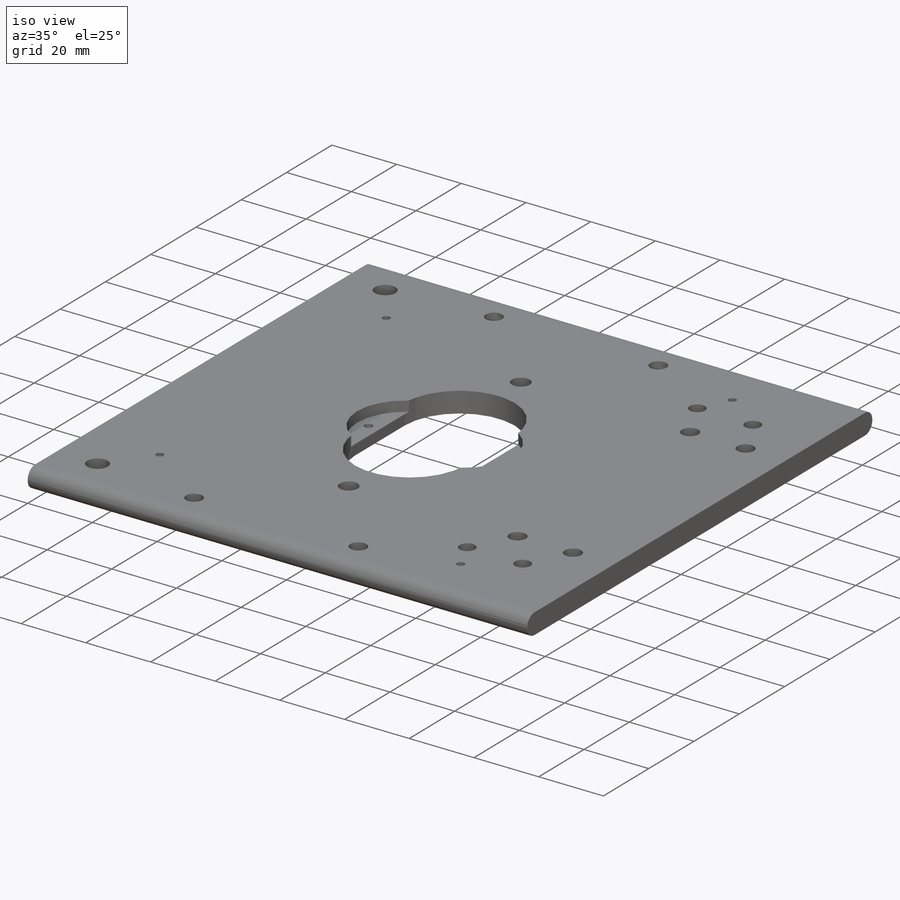
[diagram: iso view]
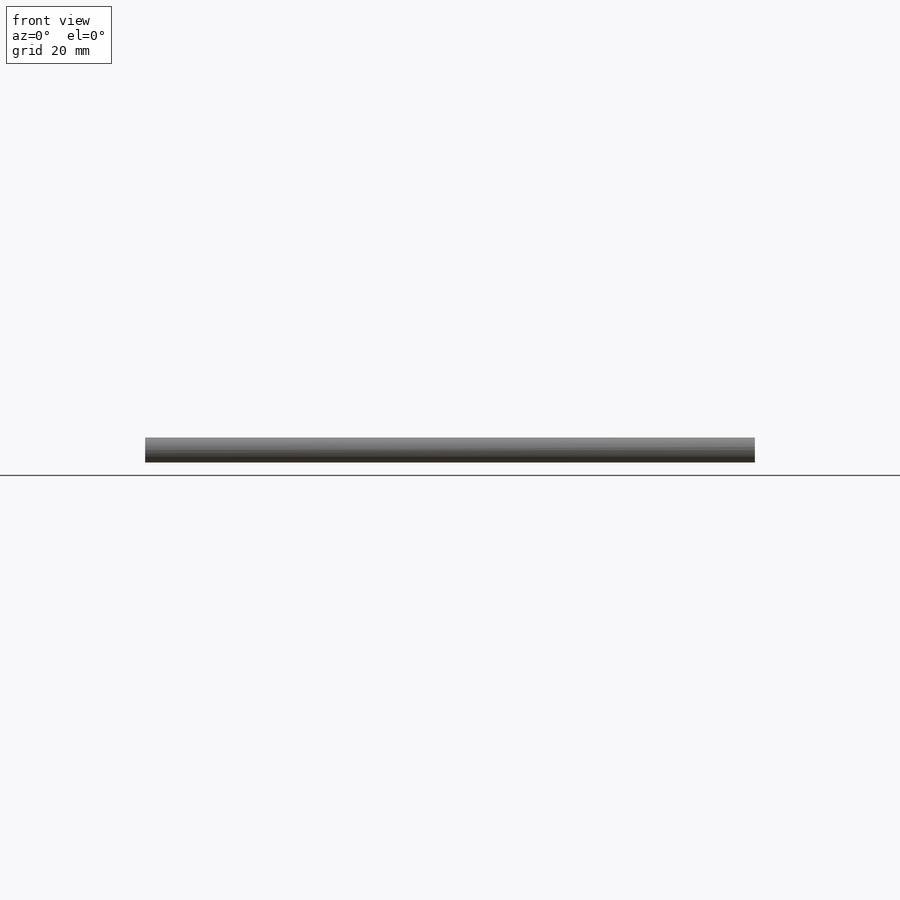
[diagram: front view]
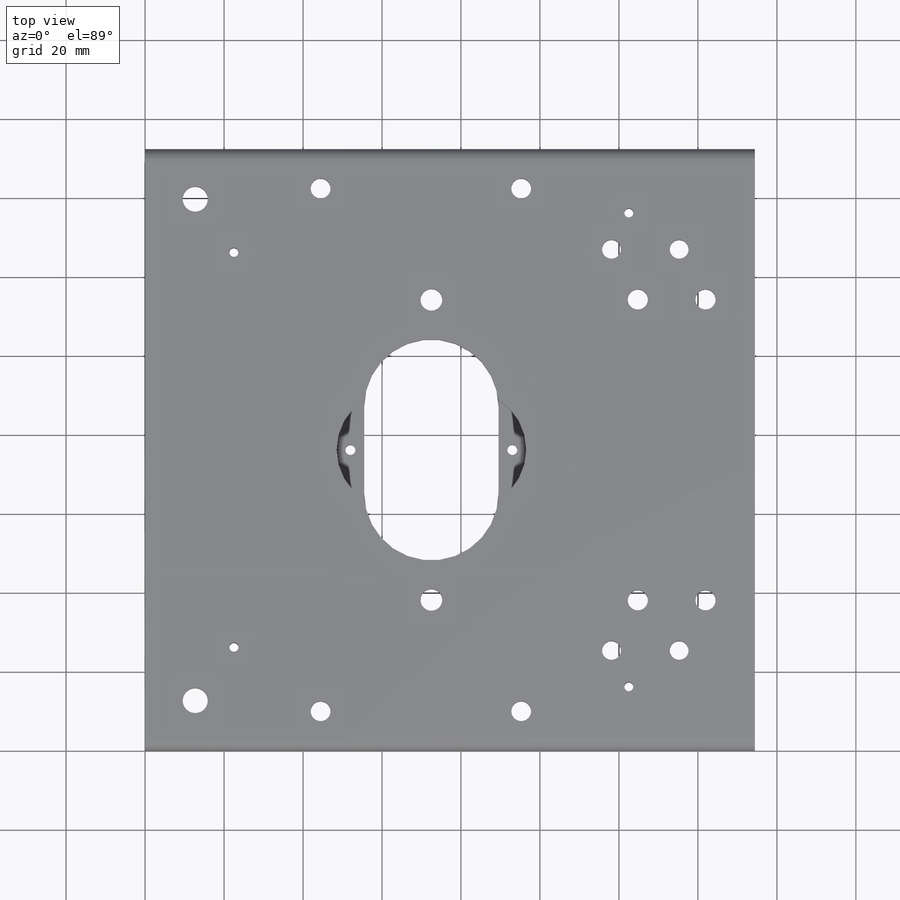
[diagram: top view]
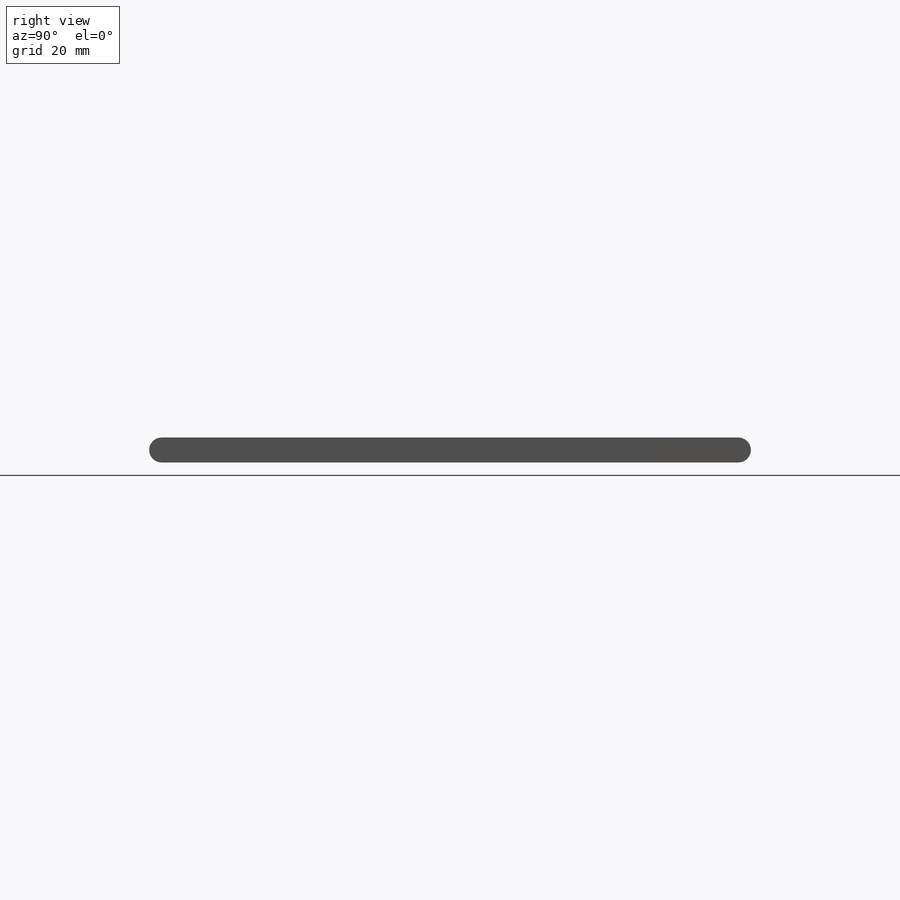
[diagram: right view]
SOLIDWORKS PART (.sldprt)
format: sldprt  version: not decoded by parser v0  size: 341,504 bytes
history: native  units: mm
features: sketch x6, cut_extrude x5, material x1, extrude x1, fillet x1 (+16 scaffold rows collapsed)
feature tree (30):
  scaffold x16  (default folders/planes/origin — collapsed)
  material  "Copper"
  sketch  "Sketch1"  dims[D3=6.35mm D8=29.0mm D9=4.7625mm D14=5.0165mm D1=154.432mm D2=152.4mm D4=12.7mm D5=12.7mm D6=12.7mm D7=72.5mm D10=118.11mm D11=135.255mm D12=25.4mm D13=25.4mm D15=44.45mm D16=95.25mm D17=10.0mm D18=10.0mm]
  extrude  "Boss-Extrude1"  Depth=6.35mm
  fillet  "Fillet2"  Radius=3.175mm
  sketch  "Sketch7"  dims[D1=34.0mm D2=11.0mm]
  sketch  "Sketch8"  dims[D1=15.0mm D2=9.0mm]
  sketch  "Sketch9"  dims[D1=5.5mm D2=2.5mm D3=38.0mm D4=20.5mm]
  cut_extrude  "Cut-Extrude4"  [1 undecoded]
  cut_extrude  "Cut-Extrude5"  [1 undecoded]
  cut_extrude  "Cut-Extrude6"  Depth=3.175mm
  sketch  "Sketch11"  dims[D3=5.1054mm D1=114.3mm D2=152.4mm D4=38.1mm D5=17.145mm D6=114.3mm]
  cut_extrude  "Cut-Extrude9"  [1 undecoded]
  sketch  "Sketch12"  dims[c1.D5=2.2606mm c1.D8=2.2606mm c1.D9=2.2606mm c1.D1=50.0mm c1.D2=50.0mm c1.D3=60.0mm c1.D4=60.0mm c1.D6=152.4mm c2.D1=8.2mm c2.D6=50.0mm c2.D7=50.0mm c2.D10=~64.688075mm]
  cut_extrude  "Cut-Extrude10"  Depth=6.35mm
decode coverage: 10 of 13 modeling features carry decoded parameters
note: ~ marks probable driven/reference dimensions
note: 3 parameter values undecoded
summary: no parameter record found for 3 features
note: suppression state not decoded; provenance and decode notes live in map.json
